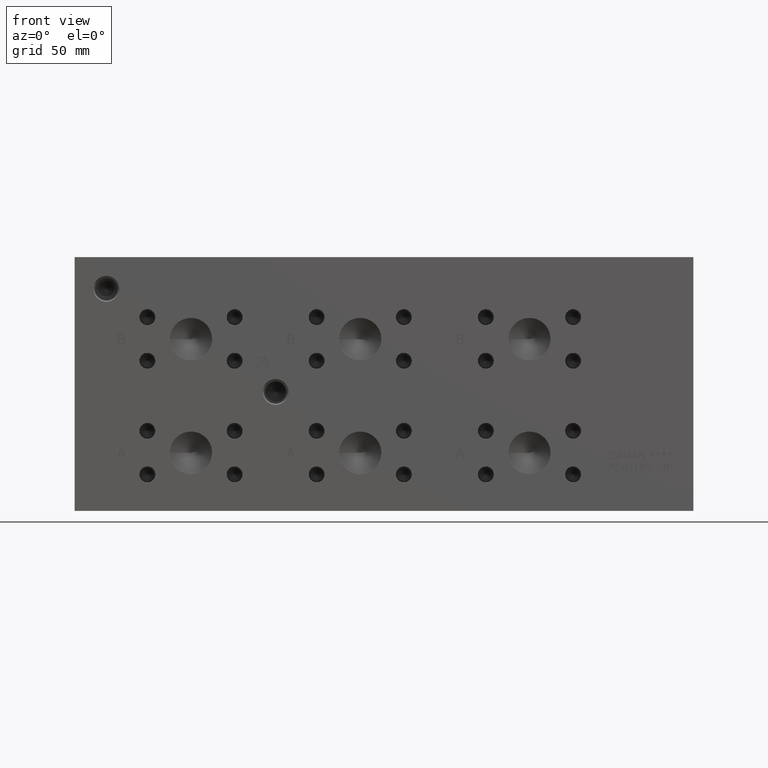
[diagram: clean part render]
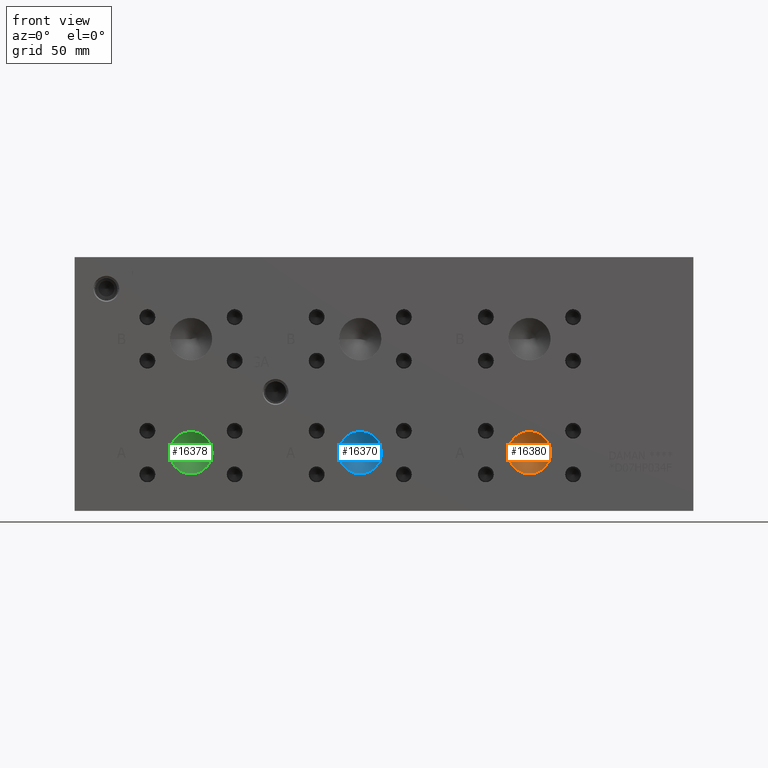
[diagram: same view with three faces highlighted in distinct colors, each labeled with its STEP entity id]
A machine part, front view with three faces highlighted in distinct colors.
Their STEP definitions:

[orange] entity #16380 — the highlighted conical surface has half-angle 60 deg.
#240=CONICAL_SURFACE('',#17496,6.35,1.0471975511966);
#664=CIRCLE('',#17497,12.7);
#665=CIRCLE('',#17498,12.7);
#2276=FACE_OUTER_BOUND('',#3289,.T.);
#3289=EDGE_LOOP('',(#14351,#14352,#14353,#14354));
#4769=LINE('',#27753,#6170);
#6170=VECTOR('',#21097,6.35);
#7929=VERTEX_POINT('',#27749);
#7930=VERTEX_POINT('',#27750);
#7931=VERTEX_POINT('',#27752);
#10144=EDGE_CURVE('',#7929,#7930,#664,.T.);
#10145=EDGE_CURVE('',#7930,#7931,#4769,.T.);
#10146=EDGE_CURVE('',#7930,#7929,#665,.T.);
#14351=ORIENTED_EDGE('',*,*,#10144,.T.);
#14352=ORIENTED_EDGE('',*,*,#10145,.T.);
#14353=ORIENTED_EDGE('',*,*,#10145,.F.);
#14354=ORIENTED_EDGE('',*,*,#10146,.T.);
#16380=ADVANCED_FACE('',(#2276),#240,.F.);
#17496=AXIS2_PLACEMENT_3D('',#27748,#21093,#21094);
#17497=AXIS2_PLACEMENT_3D('',#27751,#21095,#21096);
#17498=AXIS2_PLACEMENT_3D('',#27754,#21098,#21099);
#21093=DIRECTION('center_axis',(0.,-1.,0.));
#21094=DIRECTION('ref_axis',(1.,0.,0.));
#21095=DIRECTION('center_axis',(0.,-1.,0.));
#21096=DIRECTION('ref_axis',(1.,0.,0.));
#21097=DIRECTION('',(0.866025403784439,0.5,1.06057523872491E-16));
#21098=DIRECTION('center_axis',(0.,-1.,0.));
#21099=DIRECTION('ref_axis',(1.,0.,0.));
#27748=CARTESIAN_POINT('Origin',(273.05,10.9985242093541,34.925));
#27749=CARTESIAN_POINT('',(285.75,7.33235,34.925));
#27750=CARTESIAN_POINT('',(260.35,7.33235,34.925));
#27751=CARTESIAN_POINT('Origin',(273.05,7.33235,34.925));
#27752=CARTESIAN_POINT('',(273.05,14.6646984187083,34.925));
#27753=CARTESIAN_POINT('',(266.7,10.9985242093541,34.925));
#27754=CARTESIAN_POINT('Origin',(273.05,7.33235,34.925));

[blue] entity #16370 — the highlighted conical surface has half-angle 60 deg.
#235=CONICAL_SURFACE('',#17476,6.35,1.0471975511966);
#654=CIRCLE('',#17477,12.7);
#655=CIRCLE('',#17478,12.7);
#2266=FACE_OUTER_BOUND('',#3279,.T.);
#3279=EDGE_LOOP('',(#14301,#14302,#14303,#14304));
#4759=LINE('',#27708,#6160);
#6160=VECTOR('',#21047,6.35);
#7914=VERTEX_POINT('',#27704);
#7915=VERTEX_POINT('',#27705);
#7916=VERTEX_POINT('',#27707);
#10124=EDGE_CURVE('',#7914,#7915,#654,.T.);
#10125=EDGE_CURVE('',#7915,#7916,#4759,.T.);
#10126=EDGE_CURVE('',#7915,#7914,#655,.T.);
#14301=ORIENTED_EDGE('',*,*,#10124,.T.);
#14302=ORIENTED_EDGE('',*,*,#10125,.T.);
#14303=ORIENTED_EDGE('',*,*,#10125,.F.);
#14304=ORIENTED_EDGE('',*,*,#10126,.T.);
#16370=ADVANCED_FACE('',(#2266),#235,.F.);
#17476=AXIS2_PLACEMENT_3D('',#27703,#21043,#21044);
#17477=AXIS2_PLACEMENT_3D('',#27706,#21045,#21046);
#17478=AXIS2_PLACEMENT_3D('',#27709,#21048,#21049);
#21043=DIRECTION('center_axis',(0.,-1.,0.));
#21044=DIRECTION('ref_axis',(1.,0.,0.));
#21045=DIRECTION('center_axis',(0.,-1.,0.));
#21046=DIRECTION('ref_axis',(1.,0.,0.));
#21047=DIRECTION('',(0.866025403784439,0.5,1.06057523872491E-16));
#21048=DIRECTION('center_axis',(0.,-1.,0.));
#21049=DIRECTION('ref_axis',(1.,0.,0.));
#27703=CARTESIAN_POINT('Origin',(171.45,10.9985242093541,34.925));
#27704=CARTESIAN_POINT('',(184.15,7.33235,34.925));
#27705=CARTESIAN_POINT('',(158.75,7.33235,34.925));
#27706=CARTESIAN_POINT('Origin',(171.45,7.33235,34.925));
#27707=CARTESIAN_POINT('',(171.45,14.6646984187083,34.925));
#27708=CARTESIAN_POINT('',(165.1,10.9985242093541,34.925));
#27709=CARTESIAN_POINT('Origin',(171.45,7.33235,34.925));

[green] entity #16378 — the highlighted conical surface has half-angle 60 deg.
#239=CONICAL_SURFACE('',#17492,6.35,1.0471975511966);
#662=CIRCLE('',#17493,12.7);
#663=CIRCLE('',#17494,12.7);
#2274=FACE_OUTER_BOUND('',#3287,.T.);
#3287=EDGE_LOOP('',(#14341,#14342,#14343,#14344));
#4767=LINE('',#27744,#6168);
#6168=VECTOR('',#21087,6.35);
#7926=VERTEX_POINT('',#27740);
#7927=VERTEX_POINT('',#27741);
#7928=VERTEX_POINT('',#27743);
#10140=EDGE_CURVE('',#7926,#7927,#662,.T.);
#10141=EDGE_CURVE('',#7927,#7928,#4767,.T.);
#10142=EDGE_CURVE('',#7927,#7926,#663,.T.);
#14341=ORIENTED_EDGE('',*,*,#10140,.T.);
#14342=ORIENTED_EDGE('',*,*,#10141,.T.);
#14343=ORIENTED_EDGE('',*,*,#10141,.F.);
#14344=ORIENTED_EDGE('',*,*,#10142,.T.);
#16378=ADVANCED_FACE('',(#2274),#239,.F.);
#17492=AXIS2_PLACEMENT_3D('',#27739,#21083,#21084);
#17493=AXIS2_PLACEMENT_3D('',#27742,#21085,#21086);
#17494=AXIS2_PLACEMENT_3D('',#27745,#21088,#21089);
#21083=DIRECTION('center_axis',(0.,-1.,0.));
#21084=DIRECTION('ref_axis',(1.,0.,0.));
#21085=DIRECTION('center_axis',(0.,-1.,0.));
#21086=DIRECTION('ref_axis',(1.,0.,0.));
#21087=DIRECTION('',(0.866025403784439,0.5,1.06057523872491E-16));
#21088=DIRECTION('center_axis',(0.,-1.,0.));
#21089=DIRECTION('ref_axis',(1.,0.,0.));
#27739=CARTESIAN_POINT('Origin',(69.85,10.9985242093541,34.925));
#27740=CARTESIAN_POINT('',(82.55,7.33235,34.925));
#27741=CARTESIAN_POINT('',(57.15,7.33235,34.925));
#27742=CARTESIAN_POINT('Origin',(69.85,7.33235,34.925));
#27743=CARTESIAN_POINT('',(69.85,14.6646984187083,34.925));
#27744=CARTESIAN_POINT('',(63.5,10.9985242093541,34.925));
#27745=CARTESIAN_POINT('Origin',(69.85,7.33235,34.925));